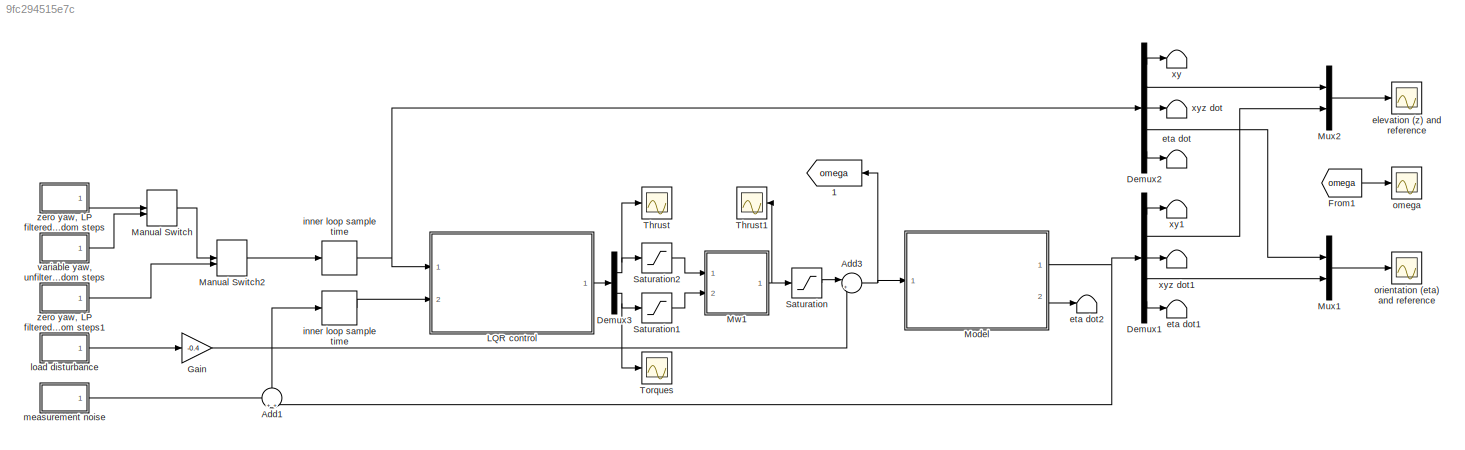
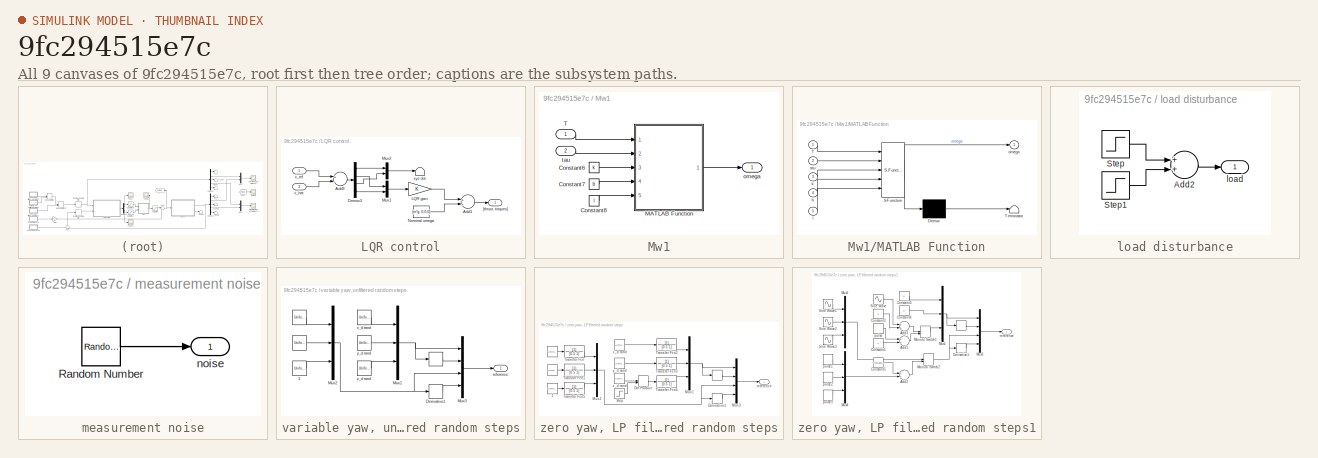
[diagram: thumbnail index - all 9 canvases of the model, root first then tree order]
MODEL slx_9fc294515e7c
KIND model
CONFIG AbsTol = auto
CONFIG FixedStep = auto
CONFIG MaxStep = auto
CONFIG MinStep = auto
CONFIG RelTol = 1e-3
CONFIG SampleTimeConstraint = Unconstrained
CONFIG Solver = VariableStepAuto
CONFIG SolverMode = Auto
CONFIG SolverName = VariableStepAuto
CONFIG StartTime = 0.0
CONFIG StopTime = 60
BLOCK [Terminator]    eta dot
BLOCK [Terminator]    eta dot1
BLOCK [Terminator]    eta dot2
BLOCK [Terminator]    xy
BLOCK [Terminator]    xy1
BLOCK [Terminator]   xyz dot
BLOCK [Terminator]   xyz dot1
BLOCK [Goto]  1
  GotoTag = omega
BLOCK [Sum] Add1
  IconShape = round
  InputSameDT = off
  OutDataTypeStr = Inherit: Inherit via internal rule
  Ports = [2, 1]
  SaturateOnIntegerOverflow = off
BLOCK [Sum] Add3
  IconShape = round
  InputSameDT = off
  Inputs = |++
  OutDataTypeStr = Inherit: Inherit via internal rule
  Ports = [2, 1]
  SaturateOnIntegerOverflow = off
BLOCK [Demux] Demux1
  DisplayOption = bar
  Outputs = [2,1,3,3,3]
  Ports = [1, 5]
BLOCK [Demux] Demux2
  DisplayOption = bar
  Outputs = [2,1,3,3,3]
  Ports = [1, 5]
BLOCK [Demux] Demux3
  DisplayOption = bar
  Outputs = [1,3]
  Ports = [1, 2]
BLOCK [From] From1
  GotoTag = omega
BLOCK [Gain] Gain
  Gain = -0.4
  OutDataTypeStr = Inherit: Inherit via internal rule
  ParamDataTypeStr = Inherit: Inherit via internal rule
  SaturateOnIntegerOverflow = off
BLOCK [SubSystem] LQR control
  Ports = [2, 1]
  RequestExecContextInheritance = off
  Variant = off
BLOCK [Terminator] LQR control/  xyz dot
BLOCK [Sum] LQR control/Add1
  InputSameDT = off
  OutDataTypeStr = Inherit: Inherit via internal rule
  Ports = [2, 1]
  SaturateOnIntegerOverflow = off
BLOCK [Sum] LQR control/Add3
  InputSameDT = off
  Inputs = +-
  OutDataTypeStr = Inherit: Inherit via internal rule
  Ports = [2, 1]
  SaturateOnIntegerOverflow = off
BLOCK [Demux] LQR control/Demux3
  DisplayOption = bar
  Outputs = [2,1,2,7]
  Ports = [1, 4]
BLOCK [Gain] LQR control/LQR gain
  Gain = K
  Multiplication = Matrix(K*u)
  OutDataTypeStr = Inherit: Inherit via internal rule
  ParamDataTypeStr = Inherit: Inherit via internal rule
  SaturateOnIntegerOverflow = off
BLOCK [Mux] LQR control/Mux1
  DisplayOption = bar
  Inputs = 2
  Ports = [2, 1]
BLOCK [Mux] LQR control/Mux2
  DisplayOption = bar
  Inputs = 2
  Ports = [2, 1]
BLOCK [Constant] LQR control/Nominal omega
  Value = [m*g, 0,0,0]
BLOCK [Outport] LQR control/[thrust, torques]
  IconDisplay = Port number
BLOCK [Inport] LQR control/x_hat
  IconDisplay = Port number
  Port = 2
  PortDimensions = 12
BLOCK [Inport] LQR control/x_ref
  IconDisplay = Port number
  PortDimensions = 12
BLOCK [ManualSwitch] Manual Switch
BLOCK [ManualSwitch] Manual Switch2
BLOCK [ModelReference] Model
  ModelNameDialog = quadcopter_model_c.mdl
  ModelReferenceVersion = 1.156
  Ports = [1, 2]
  Variant = off
BLOCK [Mux] Mux1
  DisplayOption = bar
  Inputs = 2
  Ports = [2, 1]
BLOCK [Mux] Mux2
  DisplayOption = bar
  Inputs = 2
  Ports = [2, 1]
BLOCK [SubSystem] Mw1
  Ports = [2, 1]
  RequestExecContextInheritance = off
  Variant = off
BLOCK [Constant] Mw1/Constant6
  Value = k
BLOCK [Constant] Mw1/Constant7
  Value = b
BLOCK [Constant] Mw1/Constant8
  Value = l
BLOCK [SubSystem] Mw1/MATLAB Function
  ErrorFcn = Stateflow.Translate.translate
  PermitHierarchicalResolution = ExplicitOnly
  Ports = [5, 1]
  RequestExecContextInheritance = off
  SFBlockType = MATLAB Function
  TreatAsAtomicUnit = on
  Variant = off
BLOCK [Demux] Mw1/MATLAB Function/ Demux 
  Outputs = 1
  Ports = [1, 1]
BLOCK [S-Function] Mw1/MATLAB Function/ SFunction 
  EnableBusSupport = on
  FunctionName = sf_sfun
  PortCounts = [5 2]
  Ports = [5, 2]
  SFunctionDeploymentMode = off
  Tag = Stateflow S-Function inner_LQR_test 1
BLOCK [Terminator] Mw1/MATLAB Function/ Terminator 
BLOCK [Inport] Mw1/MATLAB Function/T
  IconDisplay = Port number
BLOCK [Inport] Mw1/MATLAB Function/b
  IconDisplay = Port number
  Port = 4
BLOCK [Inport] Mw1/MATLAB Function/k
  IconDisplay = Port number
  Port = 3
BLOCK [Inport] Mw1/MATLAB Function/l
  IconDisplay = Port number
  Port = 5
BLOCK [Outport] Mw1/MATLAB Function/omega
  IconDisplay = Port number
BLOCK [Inport] Mw1/MATLAB Function/tau
  IconDisplay = Port number
  Port = 2
BLOCK [Inport] Mw1/T
  IconDisplay = Port number
BLOCK [Outport] Mw1/omega
  IconDisplay = Port number
BLOCK [Inport] Mw1/tau
  IconDisplay = Port number
  Port = 2
BLOCK [Saturate] Saturation
  InputPortMap = u0
  LowerLimit = inner_minlim
  Ports = [1, 1]
  UpperLimit = inner_maxlim
BLOCK [Saturate] Saturation1
  InputPortMap = u0
  LowerLimit = -0.1
  Ports = [1, 1]
  UpperLimit = 0.1
BLOCK [Saturate] Saturation2
  InputPortMap = u0
  LowerLimit = 0.01
  Ports = [1, 1]
BLOCK [Scope] Thrust
  Ports = [1]
  ScopeSpecificationString = Simulink.scopes.TimeScopeBlockCfg('CurrentConfiguration', extmgr.ConfigurationSet(extmgr.Configuration('Core','General UI',true),extmgr.Configuration('Core','Source UI',true),extmgr.Configuration('Sources','WiredSimulink',true,'DataLoggingVariableName','ScopeData1'),extmgr.Configuration('Visuals','Time Domain',true,'SerializedDisplays',{struct('MinYLimReal','-2.07628','MaxYLimReal','7.08835','YLab...<+1467ch>
BLOCK [Scope] Thrust1
  Ports = [1]
  ScopeSpecificationString = Simulink.scopes.TimeScopeBlockCfg('CurrentConfiguration', extmgr.ConfigurationSet(extmgr.Configuration('Core','General UI',true),extmgr.Configuration('Core','Source UI',true),extmgr.Configuration('Sources','WiredSimulink',true,'DataLoggingVariableName','ScopeData3'),extmgr.Configuration('Visuals','Time Domain',true,'SerializedDisplays',{struct('MinYLimReal','-346.09304','MaxYLimReal','3114.83738',...<+1506ch>
BLOCK [Scope] Torques
  Ports = [1]
  ScopeSpecificationString = Simulink.scopes.TimeScopeBlockCfg('CurrentConfiguration', extmgr.ConfigurationSet(extmgr.Configuration('Core','General UI',true),extmgr.Configuration('Core','Source UI',true),extmgr.Configuration('Sources','WiredSimulink',true,'DataLoggingVariableName','ScopeData2'),extmgr.Configuration('Visuals','Time Domain',true,'SerializedDisplays',{struct('MinYLimReal','-0.000057','MaxYLimReal','0.000009','YL...<+1503ch>
BLOCK [Scope] elevation (z) and reference
  Ports = [1]
  ScopeSpecificationString = Simulink.scopes.TimeScopeBlockCfg('CurrentConfiguration', extmgr.ConfigurationSet(extmgr.Configuration('Core','General UI',true),extmgr.Configuration('Core','Source UI',true),extmgr.Configuration('Sources','WiredSimulink',true,'DataLoggingVariableName','ScopeData2'),extmgr.Configuration('Visuals','Time Domain',true,'SerializedDisplays',{struct('MinYLimReal','-0.38378','MaxYLimReal','3.11253','YLab...<+1426ch>
BLOCK [Delay] inner loop sample time
  DelayLength = 1
  InitialCondition = 0
  InputPortMap = u0
  Ports = [1, 1]
  SampleTime = inner_h
BLOCK [Delay] inner loop sample time 
  DelayLength = 1
  InitialCondition = 0
  InputPortMap = u0
  Ports = [1, 1]
  SampleTime = inner_h
BLOCK [SubSystem] load disturbance
  Ports = [0, 1]
  RequestExecContextInheritance = off
  Variant = off
BLOCK [Sum] load disturbance/Add2
  InputSameDT = off
  OutDataTypeStr = Inherit: Inherit via internal rule
  Ports = [2, 1]
  SaturateOnIntegerOverflow = off
BLOCK [Step] load disturbance/Step
  After = 500
  SampleTime = 0
  Time = 15
BLOCK [Step] load disturbance/Step1
  After = -500
  SampleTime = 0
  Time = 35
BLOCK [Outport] load disturbance/load
  IconDisplay = Port number
BLOCK [SubSystem] measurement noise
  Ports = [0, 1]
  RequestExecContextInheritance = off
  Variant = off
BLOCK [RandomNumber] measurement noise/Random Number
  Mean = [0,0,0,0,0,0,0,0,0,0,0,0]
  Variance = [0,0,0,0,0,0,0,0,0,0,0,0]
BLOCK [Outport] measurement noise/noise
  IconDisplay = Port number
BLOCK [Scope] omega 
  Ports = [1]
  ScopeSpecificationString = Simulink.scopes.TimeScopeBlockCfg('CurrentConfiguration', extmgr.ConfigurationSet(extmgr.Configuration('Core','General UI',true),extmgr.Configuration('Core','Source UI',true),extmgr.Configuration('Sources','WiredSimulink',true,'DataLoggingVariableName','ScopeData1'),extmgr.Configuration('Visuals','Time Domain',true,'SerializedDisplays',{struct('MinYLimReal','-312.5','MaxYLimReal','2812.5','YLabelR...<+1486ch>
BLOCK [Scope] orientation (eta) and reference
  Ports = [1]
  ScopeSpecificationString = Simulink.scopes.TimeScopeBlockCfg('CurrentConfiguration', extmgr.ConfigurationSet(extmgr.Configuration('Core','General UI',true),extmgr.Configuration('Core','Source UI',true),extmgr.Configuration('Sources','WiredSimulink',true,'DataLoggingVariableName','ScopeData1'),extmgr.Configuration('Visuals','Time Domain',true,'SerializedDisplays',{struct('MinYLimReal','-0.87544','MaxYLimReal','0.70516','YLab...<+1480ch>
BLOCK [SubSystem] variable yaw, unfiltered random steps
  Ports = [0, 1]
  RequestExecContextInheritance = off
  Variant = off
BLOCK [UniformRandomNumber] variable yaw, unfiltered random steps/ 
  Maximum = 0.8
  Minimum = -0.8
  SampleTime = 10
  Seed = 4
BLOCK [UniformRandomNumber] variable yaw, unfiltered random steps/   
  Maximum = 0.2
  Minimum = -0.2
  SampleTime = 10
  Seed = 3
BLOCK [Derivative] variable yaw, unfiltered random steps/        
BLOCK [UniformRandomNumber] variable yaw, unfiltered random steps/ 1
  Maximum = 0.8
  Minimum = -0.8
  SampleTime = 10
  Seed = 5
BLOCK [Derivative] variable yaw, unfiltered random steps/Derivative1
BLOCK [Mux] variable yaw, unfiltered random steps/Mux1
  DisplayOption = bar
  Inputs = 3
  Ports = [3, 1]
BLOCK [Mux] variable yaw, unfiltered random steps/Mux2
  DisplayOption = bar
  Inputs = 3
  Ports = [3, 1]
BLOCK [Mux] variable yaw, unfiltered random steps/Mux3
  DisplayOption = bar
  Inputs = [3,3,3,3]
  Ports = [4, 1]
BLOCK [Outport] variable yaw, unfiltered random steps/reference
  IconDisplay = Port number
BLOCK [UniformRandomNumber] variable yaw, unfiltered random steps/x_d rand
  Maximum = 30
  Minimum = -30
  SampleTime = 10
BLOCK [UniformRandomNumber] variable yaw, unfiltered random steps/y_d rand
  Maximum = 30
  Minimum = -30
  SampleTime = 10
  Seed = 1
BLOCK [UniformRandomNumber] variable yaw, unfiltered random steps/z_d rand
  Maximum = 15
  Minimum = 0
  SampleTime = 10
  Seed = 2
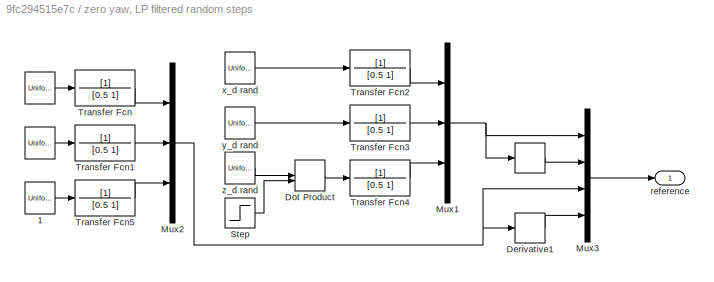
BLOCK [SubSystem] zero yaw, LP filtered random steps
  Ports = [0, 1]
  RequestExecContextInheritance = off
  Variant = off
BLOCK [UniformRandomNumber] zero yaw, LP filtered random steps/ 
  Maximum = max_ang_ref
  Minimum = -max_ang_ref
  SampleTime = 10
  Seed = 4
BLOCK [UniformRandomNumber] zero yaw, LP filtered random steps/   
  Maximum = max_ang_ref
  Minimum = -max_ang_ref
  SampleTime = 10
  Seed = 3
BLOCK [Derivative] zero yaw, LP filtered random steps/        
BLOCK [UniformRandomNumber] zero yaw, LP filtered random steps/ 1
  Maximum = max_ang_ref
  Minimum = -max_ang_ref
  SampleTime = 10
  Seed = 5
BLOCK [Derivative] zero yaw, LP filtered random steps/Derivative1
BLOCK [DotProduct] zero yaw, LP filtered random steps/Dot Product
  OutDataTypeStr = Inherit: Inherit via internal rule
BLOCK [Mux] zero yaw, LP filtered random steps/Mux1
  DisplayOption = bar
  Inputs = 3
  Ports = [3, 1]
BLOCK [Mux] zero yaw, LP filtered random steps/Mux2
  DisplayOption = bar
  Inputs = 3
  Ports = [3, 1]
BLOCK [Mux] zero yaw, LP filtered random steps/Mux3
  DisplayOption = bar
  Inputs = [3,3,3,3]
  Ports = [4, 1]
BLOCK [Step] zero yaw, LP filtered random steps/Step
  After = 0
  Before = 1
  SampleTime = 0
  Time = 40
BLOCK [TransferFcn] zero yaw, LP filtered random steps/Transfer Fcn
  Denominator = [0.5 1]
BLOCK [TransferFcn] zero yaw, LP filtered random steps/Transfer Fcn1
  Denominator = [0.5 1]
BLOCK [TransferFcn] zero yaw, LP filtered random steps/Transfer Fcn2
  Denominator = [0.5 1]
BLOCK [TransferFcn] zero yaw, LP filtered random steps/Transfer Fcn3
  Denominator = [0.5 1]
BLOCK [TransferFcn] zero yaw, LP filtered random steps/Transfer Fcn4
  Denominator = [0.5 1]
BLOCK [TransferFcn] zero yaw, LP filtered random steps/Transfer Fcn5
  Denominator = [0.5 1]
BLOCK [Outport] zero yaw, LP filtered random steps/reference
  IconDisplay = Port number
BLOCK [UniformRandomNumber] zero yaw, LP filtered random steps/x_d rand
  Maximum = 30
  Minimum = -30
  SampleTime = 10
BLOCK [UniformRandomNumber] zero yaw, LP filtered random steps/y_d rand
  Maximum = 30
  Minimum = -30
  SampleTime = 10
  Seed = 1
BLOCK [UniformRandomNumber] zero yaw, LP filtered random steps/z_d rand
  Maximum = 3
  Minimum = 0
  SampleTime = 10
  Seed = 2
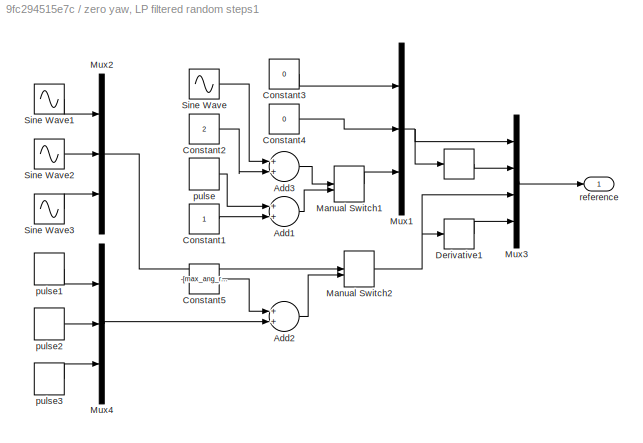
BLOCK [SubSystem] zero yaw, LP filtered random steps1
  Ports = [0, 1]
  RequestExecContextInheritance = off
  Variant = off
BLOCK [Derivative] zero yaw, LP filtered random steps1/        
BLOCK [Sum] zero yaw, LP filtered random steps1/Add1
  InputSameDT = off
  OutDataTypeStr = Inherit: Inherit via internal rule
  Ports = [2, 1]
  SaturateOnIntegerOverflow = off
BLOCK [Sum] zero yaw, LP filtered random steps1/Add2
  InputSameDT = off
  OutDataTypeStr = Inherit: Inherit via internal rule
  Ports = [2, 1]
  SaturateOnIntegerOverflow = off
BLOCK [Sum] zero yaw, LP filtered random steps1/Add3
  InputSameDT = off
  OutDataTypeStr = Inherit: Inherit via internal rule
  Ports = [2, 1]
  SaturateOnIntegerOverflow = off
BLOCK [Constant] zero yaw, LP filtered random steps1/Constant1
BLOCK [Constant] zero yaw, LP filtered random steps1/Constant2
  Value = 2
BLOCK [Constant] zero yaw, LP filtered random steps1/Constant3
  Value = 0
BLOCK [Constant] zero yaw, LP filtered random steps1/Constant4
  Value = 0
BLOCK [Constant] zero yaw, LP filtered random steps1/Constant5
  Value = -[max_ang_ref,max_ang_ref,max_ang_ref]
BLOCK [Derivative] zero yaw, LP filtered random steps1/Derivative1
BLOCK [ManualSwitch] zero yaw, LP filtered random steps1/Manual Switch1
BLOCK [ManualSwitch] zero yaw, LP filtered random steps1/Manual Switch2
BLOCK [Mux] zero yaw, LP filtered random steps1/Mux1
  DisplayOption = bar
  Inputs = 3
  Ports = [3, 1]
BLOCK [Mux] zero yaw, LP filtered random steps1/Mux2
  DisplayOption = bar
  Inputs = 3
  Ports = [3, 1]
BLOCK [Mux] zero yaw, LP filtered random steps1/Mux3
  DisplayOption = bar
  Inputs = [3,3,3,3]
  Ports = [4, 1]
BLOCK [Mux] zero yaw, LP filtered random steps1/Mux4
  DisplayOption = bar
  Inputs = 3
  Ports = [3, 1]
BLOCK [Sin] zero yaw, LP filtered random steps1/Sine Wave
  Ports = [0, 1]
  SampleTime = 0
BLOCK [Sin] zero yaw, LP filtered random steps1/Sine Wave1
  Amplitude = max_ang_ref
  Ports = [0, 1]
  SampleTime = 0
BLOCK [Sin] zero yaw, LP filtered random steps1/Sine Wave2
  Amplitude = max_ang_ref
  Phase = pi/2
  Ports = [0, 1]
BLOCK [Sin] zero yaw, LP filtered random steps1/Sine Wave3
  Amplitude = max_ang_ref
  Phase = pi
  Ports = [0, 1]
  SampleTime = 0
BLOCK [DiscretePulseGenerator] zero yaw, LP filtered random steps1/pulse
  Amplitude = 2
  Period = 10
  Ports = [0, 1]
  PulseType = Time based
  PulseWidth = 50
BLOCK [DiscretePulseGenerator] zero yaw, LP filtered random steps1/pulse1
  Amplitude = max_ang_ref*2
  Period = 10
  Ports = [0, 1]
  PulseType = Time based
  PulseWidth = 50
BLOCK [DiscretePulseGenerator] zero yaw, LP filtered random steps1/pulse2
  Amplitude = max_ang_ref*2
  Period = 10
  Ports = [0, 1]
  PulseType = Time based
  PulseWidth = 50
BLOCK [DiscretePulseGenerator] zero yaw, LP filtered random steps1/pulse3
  Amplitude = max_ang_ref*2
  Period = 10
  Ports = [0, 1]
  PulseType = Time based
  PulseWidth = 50
BLOCK [Outport] zero yaw, LP filtered random steps1/reference
  IconDisplay = Port number
LINE Add1:1 -> inner loop sample time :1
NET Add3:1 ->  1:1, Model:1
LINE Demux1:1 ->    xy1:1
LINE Demux1:2 -> Mux2:2
LINE Demux1:3 ->   xyz dot1:1
LINE Demux1:4 -> Mux1:2
LINE Demux1:5 ->    eta dot1:1
LINE Demux2:1 ->    xy:1
LINE Demux2:2 -> Mux2:1
LINE Demux2:3 ->   xyz dot:1
LINE Demux2:4 -> Mux1:1
LINE Demux2:5 ->    eta dot:1
NET Demux3:1 -> Saturation2:1, Thrust:1
NET Demux3:2 -> Saturation1:1, Torques:1
LINE From1:1 -> omega :1
LINE Gain:1 -> Add3:2
LINE LQR control/Add1:1 -> LQR control/[thrust, torques]:1
LINE LQR control/Add3:1 -> LQR control/Demux3:1
LINE LQR control/Demux3:1 -> LQR control/Mux2:1
LINE LQR control/Demux3:2 -> LQR control/Mux1:1
LINE LQR control/Demux3:3 -> LQR control/Mux2:2
LINE LQR control/Demux3:4 -> LQR control/Mux1:2
LINE LQR control/LQR gain:1 -> LQR control/Add1:1
LINE LQR control/Mux1:1 -> LQR control/LQR gain:1
LINE LQR control/Mux2:1 -> LQR control/  xyz dot:1
LINE LQR control/Nominal omega:1 -> LQR control/Add1:2
LINE LQR control/x_hat:1 -> LQR control/Add3:2
LINE LQR control/x_ref:1 -> LQR control/Add3:1
LINE LQR control:1 -> Demux3:1
LINE Manual Switch2:1 -> inner loop sample time:1
LINE Manual Switch:1 -> Manual Switch2:1
NET Model:1 -> Add1:2, Demux1:1
LINE Model:2 ->    eta dot2:1
LINE Mux1:1 -> orientation (eta) and reference:1
LINE Mux2:1 -> elevation (z) and reference:1
LINE Mw1/Constant6:1 -> Mw1/MATLAB Function:3
LINE Mw1/Constant7:1 -> Mw1/MATLAB Function:4
LINE Mw1/Constant8:1 -> Mw1/MATLAB Function:5
LINE Mw1/MATLAB Function:1 -> Mw1/omega:1
LINE Mw1/T:1 -> Mw1/MATLAB Function:1
LINE Mw1/tau:1 -> Mw1/MATLAB Function:2
NET Mw1:1 -> Saturation:1, Thrust1:1
LINE Saturation1:1 -> Mw1:2
LINE Saturation2:1 -> Mw1:1
LINE Saturation:1 -> Add3:1
LINE inner loop sample time :1 -> LQR control:2
NET inner loop sample time:1 -> Demux2:1, LQR control:1
LINE load disturbance/Add2:1 -> load disturbance/load:1
LINE load disturbance/Step1:1 -> load disturbance/Add2:2
LINE load disturbance/Step:1 -> load disturbance/Add2:1
LINE load disturbance:1 -> Gain:1
LINE measurement noise/Random Number:1 -> measurement noise/noise:1
LINE measurement noise:1 -> Add1:1
LINE variable yaw, unfiltered random steps/        :1 -> variable yaw, unfiltered random steps/Mux3:2
LINE variable yaw, unfiltered random steps/   :1 -> variable yaw, unfiltered random steps/Mux2:1
LINE variable yaw, unfiltered random steps/ 1:1 -> variable yaw, unfiltered random steps/Mux2:3
LINE variable yaw, unfiltered random steps/ :1 -> variable yaw, unfiltered random steps/Mux2:2
LINE variable yaw, unfiltered random steps/Derivative1:1 -> variable yaw, unfiltered random steps/Mux3:4
NET variable yaw, unfiltered random steps/Mux1:1 -> variable yaw, unfiltered random steps/        :1, variable yaw, unfiltered random steps/Mux3:1
NET variable yaw, unfiltered random steps/Mux2:1 -> variable yaw, unfiltered random steps/Derivative1:1, variable yaw, unfiltered random steps/Mux3:3
LINE variable yaw, unfiltered random steps/Mux3:1 -> variable yaw, unfiltered random steps/reference:1
LINE variable yaw, unfiltered random steps/x_d rand:1 -> variable yaw, unfiltered random steps/Mux1:1
LINE variable yaw, unfiltered random steps/y_d rand:1 -> variable yaw, unfiltered random steps/Mux1:2
LINE variable yaw, unfiltered random steps/z_d rand:1 -> variable yaw, unfiltered random steps/Mux1:3
LINE variable yaw, unfiltered random steps:1 -> Manual Switch:2
LINE zero yaw, LP filtered random steps/        :1 -> zero yaw, LP filtered random steps/Mux3:2
LINE zero yaw, LP filtered random steps/   :1 -> zero yaw, LP filtered random steps/Transfer Fcn:1
LINE zero yaw, LP filtered random steps/ 1:1 -> zero yaw, LP filtered random steps/Transfer Fcn5:1
LINE zero yaw, LP filtered random steps/ :1 -> zero yaw, LP filtered random steps/Transfer Fcn1:1
LINE zero yaw, LP filtered random steps/Derivative1:1 -> zero yaw, LP filtered random steps/Mux3:4
LINE zero yaw, LP filtered random steps/Dot Product:1 -> zero yaw, LP filtered random steps/Transfer Fcn4:1
NET zero yaw, LP filtered random steps/Mux1:1 -> zero yaw, LP filtered random steps/        :1, zero yaw, LP filtered random steps/Mux3:1
NET zero yaw, LP filtered random steps/Mux2:1 -> zero yaw, LP filtered random steps/Derivative1:1, zero yaw, LP filtered random steps/Mux3:3
LINE zero yaw, LP filtered random steps/Mux3:1 -> zero yaw, LP filtered random steps/reference:1
LINE zero yaw, LP filtered random steps/Step:1 -> zero yaw, LP filtered random steps/Dot Product:2
LINE zero yaw, LP filtered random steps/Transfer Fcn1:1 -> zero yaw, LP filtered random steps/Mux2:2
LINE zero yaw, LP filtered random steps/Transfer Fcn2:1 -> zero yaw, LP filtered random steps/Mux1:1
LINE zero yaw, LP filtered random steps/Transfer Fcn3:1 -> zero yaw, LP filtered random steps/Mux1:2
LINE zero yaw, LP filtered random steps/Transfer Fcn4:1 -> zero yaw, LP filtered random steps/Mux1:3
LINE zero yaw, LP filtered random steps/Transfer Fcn5:1 -> zero yaw, LP filtered random steps/Mux2:3
LINE zero yaw, LP filtered random steps/Transfer Fcn:1 -> zero yaw, LP filtered random steps/Mux2:1
LINE zero yaw, LP filtered random steps/x_d rand:1 -> zero yaw, LP filtered random steps/Transfer Fcn2:1
LINE zero yaw, LP filtered random steps/y_d rand:1 -> zero yaw, LP filtered random steps/Transfer Fcn3:1
LINE zero yaw, LP filtered random steps/z_d rand:1 -> zero yaw, LP filtered random steps/Dot Product:1
LINE zero yaw, LP filtered random steps1/        :1 -> zero yaw, LP filtered random steps1/Mux3:2
LINE zero yaw, LP filtered random steps1/Add1:1 -> zero yaw, LP filtered random steps1/Manual Switch1:2
LINE zero yaw, LP filtered random steps1/Add2:1 -> zero yaw, LP filtered random steps1/Manual Switch2:2
LINE zero yaw, LP filtered random steps1/Add3:1 -> zero yaw, LP filtered random steps1/Manual Switch1:1
LINE zero yaw, LP filtered random steps1/Constant1:1 -> zero yaw, LP filtered random steps1/Add1:2
LINE zero yaw, LP filtered random steps1/Constant2:1 -> zero yaw, LP filtered random steps1/Add3:2
LINE zero yaw, LP filtered random steps1/Constant3:1 -> zero yaw, LP filtered random steps1/Mux1:1
LINE zero yaw, LP filtered random steps1/Constant4:1 -> zero yaw, LP filtered random steps1/Mux1:2
LINE zero yaw, LP filtered random steps1/Constant5:1 -> zero yaw, LP filtered random steps1/Add2:1
LINE zero yaw, LP filtered random steps1/Derivative1:1 -> zero yaw, LP filtered random steps1/Mux3:4
LINE zero yaw, LP filtered random steps1/Manual Switch1:1 -> zero yaw, LP filtered random steps1/Mux1:3
NET zero yaw, LP filtered random steps1/Manual Switch2:1 -> zero yaw, LP filtered random steps1/Derivative1:1, zero yaw, LP filtered random steps1/Mux3:3
NET zero yaw, LP filtered random steps1/Mux1:1 -> zero yaw, LP filtered random steps1/        :1, zero yaw, LP filtered random steps1/Mux3:1
LINE zero yaw, LP filtered random steps1/Mux2:1 -> zero yaw, LP filtered random steps1/Manual Switch2:1
LINE zero yaw, LP filtered random steps1/Mux3:1 -> zero yaw, LP filtered random steps1/reference:1
LINE zero yaw, LP filtered random steps1/Mux4:1 -> zero yaw, LP filtered random steps1/Add2:2
LINE zero yaw, LP filtered random steps1/Sine Wave1:1 -> zero yaw, LP filtered random steps1/Mux2:1
LINE zero yaw, LP filtered random steps1/Sine Wave2:1 -> zero yaw, LP filtered random steps1/Mux2:2
LINE zero yaw, LP filtered random steps1/Sine Wave3:1 -> zero yaw, LP filtered random steps1/Mux2:3
LINE zero yaw, LP filtered random steps1/Sine Wave:1 -> zero yaw, LP filtered random steps1/Add3:1
LINE zero yaw, LP filtered random steps1/pulse1:1 -> zero yaw, LP filtered random steps1/Mux4:1
LINE zero yaw, LP filtered random steps1/pulse2:1 -> zero yaw, LP filtered random steps1/Mux4:2
LINE zero yaw, LP filtered random steps1/pulse3:1 -> zero yaw, LP filtered random steps1/Mux4:3
LINE zero yaw, LP filtered random steps1/pulse:1 -> zero yaw, LP filtered random steps1/Add1:1
LINE zero yaw, LP filtered random steps1:1 -> Manual Switch2:2
LINE zero yaw, LP filtered random steps:1 -> Manual Switch:1
note: NET lines group one-source signal fan-out (src -> all destinations, sorted); 1:1 wires keep LINE
CHART Mw1/MATLAB Function states=1 transitions=1
  STATE_LABEL 'eML_blk_kernel()'
  STATE_LABEL "SCRIPT:\nfunction omega = Mw(T, tau, k, b, l)\n%#codegen\ntau_phi = tau(1);\ntau_theta = tau(2);\ntau_psi = tau(3);\nw1sq = T/(4*k) - tau_theta/(2*k*l) - tau_psi / (4*b);\nw2sq = T/(4*k) - tau_phi/(2*k*l) + tau_psi / (4*b);\nw3sq = T/(4*k) + tau_theta/(2*k*l) - tau_psi / (4*b);\nw4sq = T/(4*k) + tau_phi/(2*k*l) + tau_psi / (4*b);\n\nomega = sqrt(max([w1sq w2sq w3sq w4sq]', 0));"
